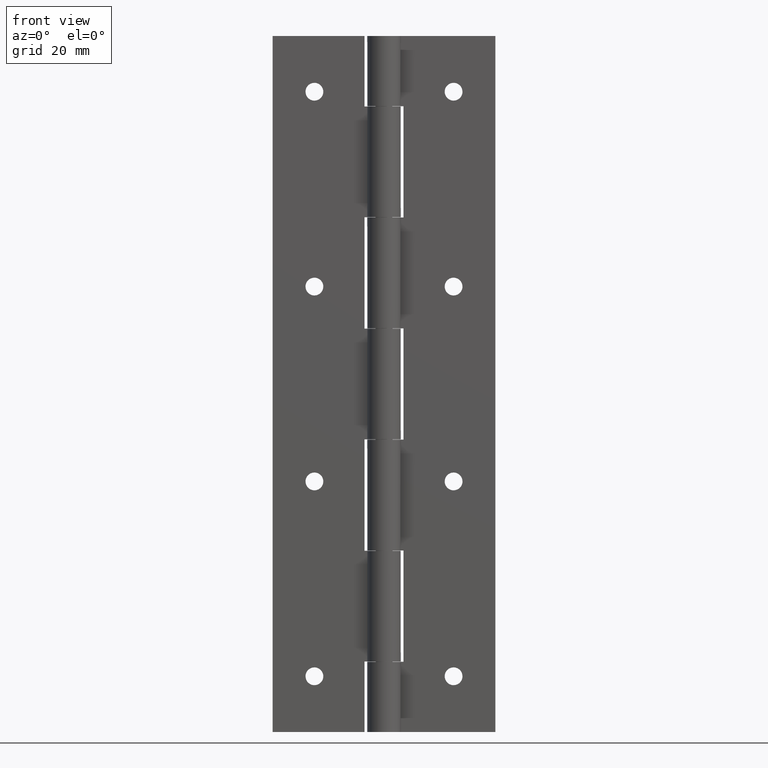
[diagram: clean part render]
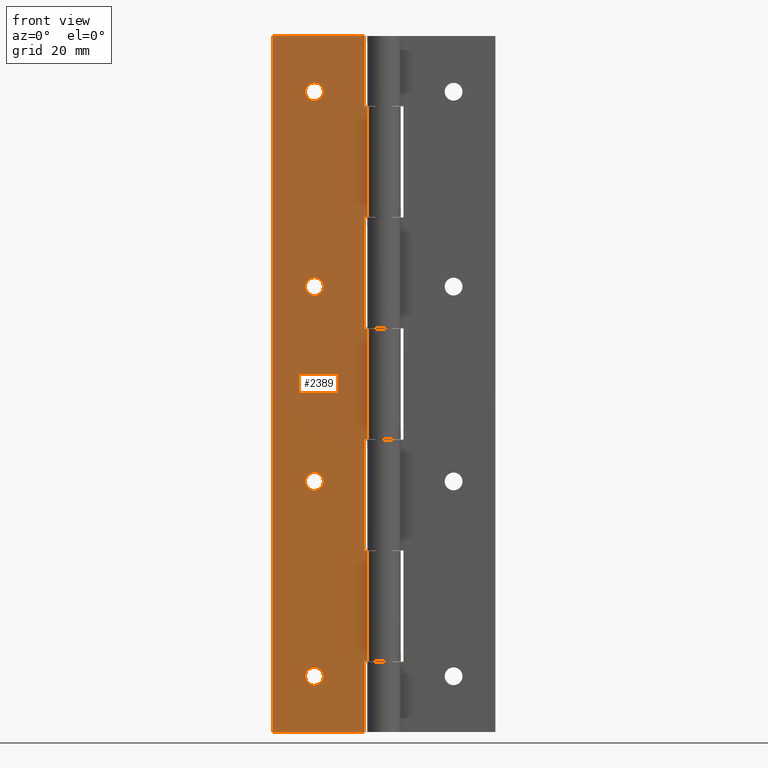
[diagram: same view with one face highlighted and labeled with its STEP entity id]
A machine part, front view. The second image highlights one B-rep face of the part: STEP entity #2389.
In plain terms, the highlighted face is a freeform B-spline surface patch.
Its self-contained STEP definition (entity closure, byte-faithful):
#1013=CARTESIAN_POINT('',(-12.500000000000000,0.800000000000023,116.599999999999990));
#1014=VERTEX_POINT('',#1013);
#1015=CARTESIAN_POINT('',(-14.095067733891041,0.800000000000023,115.125534554206000));
#1016=VERTEX_POINT('',#1015);
#1017=CARTESIAN_POINT('',(-12.500000000000000,0.800000000000023,116.599999999999990));
#1018=CARTESIAN_POINT('',(-13.979024784715719,0.800000000000023,116.600000000000020));
#1019=CARTESIAN_POINT('',(-14.095067733891037,0.800000000000023,115.125534554206030));
#1027=(BOUNDED_CURVE()B_SPLINE_CURVE(2,(#1017,#1018,#1019),.UNSPECIFIED.,.F.,.U.)B_SPLINE_CURVE_WITH_KNOTS((3,3),(0.0,0.236331300408905),.UNSPECIFIED.)CURVE()GEOMETRIC_REPRESENTATION_ITEM()RATIONAL_B_SPLINE_CURVE((1.0,0.723120658867467,0.969723355704633))REPRESENTATION_ITEM(''));
#1028=EDGE_CURVE('',#1014,#1016,#1027,.T.);
#1069=CARTESIAN_POINT('',(-10.904932266108959,0.800000000000023,114.874465445794000));
#1070=VERTEX_POINT('',#1069);
#1076=CARTESIAN_POINT('',(-10.904932266108968,0.800000000000023,114.874465445793990));
#1077=CARTESIAN_POINT('',(-10.899999999999997,0.800000000000023,114.937135827741410));
#1078=CARTESIAN_POINT('',(-10.900000000000000,0.800000000000023,115.0));
#1079=CARTESIAN_POINT('',(-10.900000000000000,0.800000000000023,116.600000000000010));
#1080=CARTESIAN_POINT('',(-12.500000000000000,0.800000000000023,116.599999999999990));
#1088=(BOUNDED_CURVE()B_SPLINE_CURVE(2,(#1076,#1077,#1078,#1079,#1080),.UNSPECIFIED.,.F.,.U.)B_SPLINE_CURVE_WITH_KNOTS((3,2,3),(0.736331300408906,0.750000000000000,1.0),.UNSPECIFIED.)CURVE()GEOMETRIC_REPRESENTATION_ITEM()RATIONAL_B_SPLINE_CURVE((0.969723355704634,0.983986122319081,1.0,0.707106781186548,1.0))REPRESENTATION_ITEM(''));
#1089=EDGE_CURVE('',#1070,#1014,#1088,.T.);
#1112=CARTESIAN_POINT('',(-12.500000000000000,0.800000000000023,113.400000000000010));
#1113=VERTEX_POINT('',#1112);
#1114=CARTESIAN_POINT('',(-14.095067733891034,0.800000000000023,115.125534554206000));
#1115=CARTESIAN_POINT('',(-14.100000000000001,0.800000000000023,115.062864172258570));
#1116=CARTESIAN_POINT('',(-14.100000000000000,0.800000000000023,115.0));
#1117=CARTESIAN_POINT('',(-14.100000000000001,0.800000000000023,113.400000000000010));
#1118=CARTESIAN_POINT('',(-12.500000000000000,0.800000000000023,113.400000000000010));
#1126=(BOUNDED_CURVE()B_SPLINE_CURVE(2,(#1114,#1115,#1116,#1117,#1118),.UNSPECIFIED.,.F.,.U.)B_SPLINE_CURVE_WITH_KNOTS((3,2,3),(0.236331300408905,0.250000000000000,0.500000000000000),.UNSPECIFIED.)CURVE()GEOMETRIC_REPRESENTATION_ITEM()RATIONAL_B_SPLINE_CURVE((0.969723355704634,0.983986122319081,1.0,0.707106781186548,1.0))REPRESENTATION_ITEM(''));
#1127=EDGE_CURVE('',#1016,#1113,#1126,.T.);
#1129=CARTESIAN_POINT('',(-12.500000000000000,0.800000000000023,113.400000000000010));
#1130=CARTESIAN_POINT('',(-11.020975215284286,0.800000000000023,113.400000000000010));
#1131=CARTESIAN_POINT('',(-10.904932266108959,0.800000000000023,114.874465445794020));
#1139=(BOUNDED_CURVE()B_SPLINE_CURVE(2,(#1129,#1130,#1131),.UNSPECIFIED.,.F.,.U.)B_SPLINE_CURVE_WITH_KNOTS((3,3),(0.500000000000000,0.736331300408905),.UNSPECIFIED.)CURVE()GEOMETRIC_REPRESENTATION_ITEM()RATIONAL_B_SPLINE_CURVE((1.0,0.723120658867467,0.969723355704633))REPRESENTATION_ITEM(''));
#1140=EDGE_CURVE('',#1113,#1070,#1139,.T.);
#1195=CARTESIAN_POINT('',(-12.500000000000000,0.800000000000023,81.600000000000009));
#1196=VERTEX_POINT('',#1195);
#1197=CARTESIAN_POINT('',(-14.095067733891041,0.800000000000023,80.125534554206041));
#1198=VERTEX_POINT('',#1197);
#1199=CARTESIAN_POINT('',(-12.500000000000000,0.800000000000023,81.600000000000009));
#1200=CARTESIAN_POINT('',(-13.979024784715726,0.800000000000023,81.600000000000009));
#1201=CARTESIAN_POINT('',(-14.095067733891041,0.800000000000023,80.125534554206041));
#1209=(BOUNDED_CURVE()B_SPLINE_CURVE(2,(#1199,#1200,#1201),.UNSPECIFIED.,.F.,.U.)B_SPLINE_CURVE_WITH_KNOTS((3,3),(0.0,0.236331300408907),.UNSPECIFIED.)CURVE()GEOMETRIC_REPRESENTATION_ITEM()RATIONAL_B_SPLINE_CURVE((1.0,0.723120658867465,0.969723355704637))REPRESENTATION_ITEM(''));
#1210=EDGE_CURVE('',#1196,#1198,#1209,.T.);
#1251=CARTESIAN_POINT('',(-10.904932266108959,0.800000000000023,79.874465445793959));
#1252=VERTEX_POINT('',#1251);
#1258=CARTESIAN_POINT('',(-10.904932266108965,0.800000000000023,79.874465445793959));
#1259=CARTESIAN_POINT('',(-10.900000000000004,0.800000000000023,79.937135827741400));
#1260=CARTESIAN_POINT('',(-10.900000000000000,0.800000000000023,80.0));
#1261=CARTESIAN_POINT('',(-10.900000000000000,0.800000000000023,81.600000000000009));
#1262=CARTESIAN_POINT('',(-12.500000000000000,0.800000000000023,81.600000000000009));
#1270=(BOUNDED_CURVE()B_SPLINE_CURVE(2,(#1258,#1259,#1260,#1261,#1262),.UNSPECIFIED.,.F.,.U.)B_SPLINE_CURVE_WITH_KNOTS((3,2,3),(0.736331300408906,0.750000000000000,1.0),.UNSPECIFIED.)CURVE()GEOMETRIC_REPRESENTATION_ITEM()RATIONAL_B_SPLINE_CURVE((0.969723355704635,0.983986122319081,1.0,0.707106781186548,1.0))REPRESENTATION_ITEM(''));
#1271=EDGE_CURVE('',#1252,#1196,#1270,.T.);
#1294=CARTESIAN_POINT('',(-12.500000000000000,0.800000000000023,78.399999999999991));
#1295=VERTEX_POINT('',#1294);
#1296=CARTESIAN_POINT('',(-14.095067733891039,0.800000000000023,80.125534554206041));
#1297=CARTESIAN_POINT('',(-14.100000000000007,0.800000000000023,80.062864172258585));
#1298=CARTESIAN_POINT('',(-14.100000000000000,0.800000000000023,80.0));
#1299=CARTESIAN_POINT('',(-14.100000000000001,0.800000000000023,78.399999999999991));
#1300=CARTESIAN_POINT('',(-12.500000000000000,0.800000000000023,78.399999999999991));
#1308=(BOUNDED_CURVE()B_SPLINE_CURVE(2,(#1296,#1297,#1298,#1299,#1300),.UNSPECIFIED.,.F.,.U.)B_SPLINE_CURVE_WITH_KNOTS((3,2,3),(0.236331300408907,0.250000000000000,0.500000000000000),.UNSPECIFIED.)CURVE()GEOMETRIC_REPRESENTATION_ITEM()RATIONAL_B_SPLINE_CURVE((0.969723355704637,0.983986122319083,1.0,0.707106781186548,1.0))REPRESENTATION_ITEM(''));
#1309=EDGE_CURVE('',#1198,#1295,#1308,.T.);
#1311=CARTESIAN_POINT('',(-12.500000000000000,0.800000000000023,78.399999999999991));
#1312=CARTESIAN_POINT('',(-11.020975215284286,0.800000000000023,78.399999999999991));
#1313=CARTESIAN_POINT('',(-10.904932266108959,0.800000000000023,79.874465445793959));
#1321=(BOUNDED_CURVE()B_SPLINE_CURVE(2,(#1311,#1312,#1313),.UNSPECIFIED.,.F.,.U.)B_SPLINE_CURVE_WITH_KNOTS((3,3),(0.500000000000000,0.736331300408905),.UNSPECIFIED.)CURVE()GEOMETRIC_REPRESENTATION_ITEM()RATIONAL_B_SPLINE_CURVE((1.0,0.723120658867467,0.969723355704633))REPRESENTATION_ITEM(''));
#1322=EDGE_CURVE('',#1295,#1252,#1321,.T.);
#1377=CARTESIAN_POINT('',(-12.500000000000000,0.800000000000023,46.599999999999987));
#1378=VERTEX_POINT('',#1377);
#1379=CARTESIAN_POINT('',(-14.095067733891041,0.800000000000023,45.125534554206048));
#1380=VERTEX_POINT('',#1379);
#1381=CARTESIAN_POINT('',(-12.500000000000000,0.800000000000023,46.599999999999987));
#1382=CARTESIAN_POINT('',(-13.979024784715719,0.800000000000023,46.600000000000001));
#1383=CARTESIAN_POINT('',(-14.095067733891037,0.800000000000023,45.125534554206048));
#1391=(BOUNDED_CURVE()B_SPLINE_CURVE(2,(#1381,#1382,#1383),.UNSPECIFIED.,.F.,.U.)B_SPLINE_CURVE_WITH_KNOTS((3,3),(0.0,0.236331300408905),.UNSPECIFIED.)CURVE()GEOMETRIC_REPRESENTATION_ITEM()RATIONAL_B_SPLINE_CURVE((1.0,0.723120658867467,0.969723355704633))REPRESENTATION_ITEM(''));
#1392=EDGE_CURVE('',#1378,#1380,#1391,.T.);
#1433=CARTESIAN_POINT('',(-10.904932266108959,0.800000000000023,44.874465445793959));
#1434=VERTEX_POINT('',#1433);
#1440=CARTESIAN_POINT('',(-10.904932266108963,0.800000000000023,44.874465445793966));
#1441=CARTESIAN_POINT('',(-10.900000000000004,0.800000000000023,44.937135827741407));
#1442=CARTESIAN_POINT('',(-10.900000000000000,0.800000000000023,45.0));
#1443=CARTESIAN_POINT('',(-10.900000000000000,0.800000000000023,46.599999999999987));
#1444=CARTESIAN_POINT('',(-12.500000000000000,0.800000000000023,46.599999999999987));
#1452=(BOUNDED_CURVE()B_SPLINE_CURVE(2,(#1440,#1441,#1442,#1443,#1444),.UNSPECIFIED.,.F.,.U.)B_SPLINE_CURVE_WITH_KNOTS((3,2,3),(0.736331300408906,0.750000000000000,1.0),.UNSPECIFIED.)CURVE()GEOMETRIC_REPRESENTATION_ITEM()RATIONAL_B_SPLINE_CURVE((0.969723355704635,0.983986122319081,1.0,0.707106781186548,1.0))REPRESENTATION_ITEM(''));
#1453=EDGE_CURVE('',#1434,#1378,#1452,.T.);
#1476=CARTESIAN_POINT('',(-12.500000000000000,0.800000000000023,43.399999999999999));
#1477=VERTEX_POINT('',#1476);
#1478=CARTESIAN_POINT('',(-14.095067733891034,0.800000000000023,45.125534554206048));
#1479=CARTESIAN_POINT('',(-14.100000000000001,0.800000000000023,45.062864172258600));
#1480=CARTESIAN_POINT('',(-14.100000000000000,0.800000000000023,45.0));
#1481=CARTESIAN_POINT('',(-14.100000000000001,0.800000000000023,43.399999999999991));
#1482=CARTESIAN_POINT('',(-12.500000000000000,0.800000000000023,43.399999999999999));
#1490=(BOUNDED_CURVE()B_SPLINE_CURVE(2,(#1478,#1479,#1480,#1481,#1482),.UNSPECIFIED.,.F.,.U.)B_SPLINE_CURVE_WITH_KNOTS((3,2,3),(0.236331300408905,0.250000000000000,0.500000000000000),.UNSPECIFIED.)CURVE()GEOMETRIC_REPRESENTATION_ITEM()RATIONAL_B_SPLINE_CURVE((0.969723355704634,0.983986122319081,1.0,0.707106781186548,1.0))REPRESENTATION_ITEM(''));
#1491=EDGE_CURVE('',#1380,#1477,#1490,.T.);
#1493=CARTESIAN_POINT('',(-12.500000000000000,0.800000000000023,43.399999999999999));
#1494=CARTESIAN_POINT('',(-11.020975215284286,0.800000000000023,43.399999999999999));
#1495=CARTESIAN_POINT('',(-10.904932266108959,0.800000000000023,44.874465445793966));
#1503=(BOUNDED_CURVE()B_SPLINE_CURVE(2,(#1493,#1494,#1495),.UNSPECIFIED.,.F.,.U.)B_SPLINE_CURVE_WITH_KNOTS((3,3),(0.500000000000000,0.736331300408905),.UNSPECIFIED.)CURVE()GEOMETRIC_REPRESENTATION_ITEM()RATIONAL_B_SPLINE_CURVE((1.0,0.723120658867467,0.969723355704633))REPRESENTATION_ITEM(''));
#1504=EDGE_CURVE('',#1477,#1434,#1503,.T.);
#1559=CARTESIAN_POINT('',(-12.500000000000000,0.800000000000023,11.600000000000000));
#1560=VERTEX_POINT('',#1559);
#1561=CARTESIAN_POINT('',(-14.095067733891041,0.800000000000023,10.125534554206039));
#1562=VERTEX_POINT('',#1561);
#1563=CARTESIAN_POINT('',(-12.500000000000000,0.800000000000023,11.600000000000000));
#1564=CARTESIAN_POINT('',(-13.979024784715728,0.800000000000023,11.600000000000001));
#1565=CARTESIAN_POINT('',(-14.095067733891037,0.800000000000023,10.125534554206038));
#1573=(BOUNDED_CURVE()B_SPLINE_CURVE(2,(#1563,#1564,#1565),.UNSPECIFIED.,.F.,.U.)B_SPLINE_CURVE_WITH_KNOTS((3,3),(0.0,0.236331300408906),.UNSPECIFIED.)CURVE()GEOMETRIC_REPRESENTATION_ITEM()RATIONAL_B_SPLINE_CURVE((1.0,0.723120658867466,0.969723355704636))REPRESENTATION_ITEM(''));
#1574=EDGE_CURVE('',#1560,#1562,#1573,.T.);
#1615=CARTESIAN_POINT('',(-10.904932266108959,0.800000000000023,9.874465445793961));
#1616=VERTEX_POINT('',#1615);
#1622=CARTESIAN_POINT('',(-10.904932266108966,0.800000000000023,9.874465445793961));
#1623=CARTESIAN_POINT('',(-10.899999999999999,0.800000000000023,9.937135827741408));
#1624=CARTESIAN_POINT('',(-10.900000000000000,0.800000000000023,10.0));
#1625=CARTESIAN_POINT('',(-10.900000000000000,0.800000000000023,11.600000000000001));
#1626=CARTESIAN_POINT('',(-12.500000000000000,0.800000000000023,11.600000000000000));
#1634=(BOUNDED_CURVE()B_SPLINE_CURVE(2,(#1622,#1623,#1624,#1625,#1626),.UNSPECIFIED.,.F.,.U.)B_SPLINE_CURVE_WITH_KNOTS((3,2,3),(0.736331300408906,0.750000000000000,1.0),.UNSPECIFIED.)CURVE()GEOMETRIC_REPRESENTATION_ITEM()RATIONAL_B_SPLINE_CURVE((0.969723355704635,0.983986122319082,1.0,0.707106781186548,1.0))REPRESENTATION_ITEM(''));
#1635=EDGE_CURVE('',#1616,#1560,#1634,.T.);
#1658=CARTESIAN_POINT('',(-12.500000000000000,0.800000000000023,8.400000000000000));
#1659=VERTEX_POINT('',#1658);
#1660=CARTESIAN_POINT('',(-14.095067733891044,0.800000000000023,10.125534554206038));
#1661=CARTESIAN_POINT('',(-14.100000000000003,0.800000000000023,10.062864172258591));
#1662=CARTESIAN_POINT('',(-14.100000000000000,0.800000000000023,10.0));
#1663=CARTESIAN_POINT('',(-14.100000000000001,0.800000000000023,8.400000000000000));
#1664=CARTESIAN_POINT('',(-12.500000000000000,0.800000000000023,8.400000000000000));
#1672=(BOUNDED_CURVE()B_SPLINE_CURVE(2,(#1660,#1661,#1662,#1663,#1664),.UNSPECIFIED.,.F.,.U.)B_SPLINE_CURVE_WITH_KNOTS((3,2,3),(0.236331300408906,0.250000000000000,0.500000000000000),.UNSPECIFIED.)CURVE()GEOMETRIC_REPRESENTATION_ITEM()RATIONAL_B_SPLINE_CURVE((0.969723355704636,0.983986122319082,1.0,0.707106781186548,1.0))REPRESENTATION_ITEM(''));
#1673=EDGE_CURVE('',#1562,#1659,#1672,.T.);
#1675=CARTESIAN_POINT('',(-12.500000000000000,0.800000000000023,8.400000000000000));
#1676=CARTESIAN_POINT('',(-11.020975215284267,0.800000000000023,8.400000000000000));
#1677=CARTESIAN_POINT('',(-10.904932266108961,0.800000000000023,9.874465445793961));
#1685=(BOUNDED_CURVE()B_SPLINE_CURVE(2,(#1675,#1676,#1677),.UNSPECIFIED.,.F.,.U.)B_SPLINE_CURVE_WITH_KNOTS((3,3),(0.500000000000000,0.736331300408907),.UNSPECIFIED.)CURVE()GEOMETRIC_REPRESENTATION_ITEM()RATIONAL_B_SPLINE_CURVE((1.0,0.723120658867465,0.969723355704638))REPRESENTATION_ITEM(''));
#1686=EDGE_CURVE('',#1659,#1616,#1685,.T.);
#1728=CARTESIAN_POINT('',(-3.500000000000100,0.800000000000023,32.549999999999997));
#1729=VERTEX_POINT('',#1728);
#1744=CARTESIAN_POINT('',(-3.500000000000100,0.799999999999990,52.549999999999997));
#1745=VERTEX_POINT('',#1744);
#1751=CARTESIAN_POINT('',(-3.500000000000100,0.800000000000023,32.549999999999997));
#1752=CARTESIAN_POINT('',(-3.500000000000100,0.799999999999990,52.549999999999997));
#1753=QUASI_UNIFORM_CURVE('',1,(#1751,#1752),.UNSPECIFIED.,.F.,.U.);
#1754=EDGE_CURVE('',#1729,#1745,#1753,.T.);
#1772=CARTESIAN_POINT('',(-2.891366458960195,0.799999999999990,32.549999999999997));
#1773=VERTEX_POINT('',#1772);
#1774=CARTESIAN_POINT('',(-2.891366458960195,0.799999999999990,32.549999999999997));
#1775=CARTESIAN_POINT('',(-3.500000000000100,0.800000000000023,32.549999999999997));
#1776=QUASI_UNIFORM_CURVE('',1,(#1774,#1775),.UNSPECIFIED.,.F.,.U.);
#1777=EDGE_CURVE('',#1773,#1729,#1776,.T.);
#1812=CARTESIAN_POINT('',(-2.891366458960195,0.799999999999990,52.549999999999997));
#1813=VERTEX_POINT('',#1812);
#1835=CARTESIAN_POINT('',(-3.500000000000100,0.799999999999990,52.549999999999997));
#1836=CARTESIAN_POINT('',(-2.891366458960195,0.799999999999990,52.549999999999997));
#1837=QUASI_UNIFORM_CURVE('',1,(#1835,#1836),.UNSPECIFIED.,.F.,.U.);
#1838=EDGE_CURVE('',#1745,#1813,#1837,.T.);
#1860=CARTESIAN_POINT('',(-3.500000000000100,0.800000000000023,72.450000000000003));
#1861=VERTEX_POINT('',#1860);
#1876=CARTESIAN_POINT('',(-3.500000000000100,0.799999999999990,92.450000000000003));
#1877=VERTEX_POINT('',#1876);
#1883=CARTESIAN_POINT('',(-3.500000000000100,0.800000000000023,72.450000000000003));
#1884=CARTESIAN_POINT('',(-3.500000000000100,0.799999999999990,92.450000000000003));
#1885=QUASI_UNIFORM_CURVE('',1,(#1883,#1884),.UNSPECIFIED.,.F.,.U.);
#1886=EDGE_CURVE('',#1861,#1877,#1885,.T.);
#1896=CARTESIAN_POINT('',(-2.891366458960195,0.799999999999990,92.450000000000003));
#1897=VERTEX_POINT('',#1896);
#1919=CARTESIAN_POINT('',(-3.500000000000100,0.799999999999990,92.450000000000003));
#1920=CARTESIAN_POINT('',(-2.891366458960195,0.799999999999990,92.450000000000003));
#1921=QUASI_UNIFORM_CURVE('',1,(#1919,#1920),.UNSPECIFIED.,.F.,.U.);
#1922=EDGE_CURVE('',#1877,#1897,#1921,.T.);
#1952=CARTESIAN_POINT('',(-2.891366458960195,0.799999999999990,72.450000000000003));
#1953=VERTEX_POINT('',#1952);
#1954=CARTESIAN_POINT('',(-2.891366458960195,0.799999999999990,72.450000000000003));
#1955=CARTESIAN_POINT('',(-3.500000000000100,0.800000000000023,72.450000000000003));
#1956=QUASI_UNIFORM_CURVE('',1,(#1954,#1955),.UNSPECIFIED.,.F.,.U.);
#1957=EDGE_CURVE('',#1953,#1861,#1956,.T.);
#1992=CARTESIAN_POINT('',(-2.891366458960195,0.799999999999990,12.650000000000000));
#1993=VERTEX_POINT('',#1992);
#2015=CARTESIAN_POINT('',(-3.500000000000100,0.800000000000023,12.650000000000000));
#2016=VERTEX_POINT('',#2015);
#2017=CARTESIAN_POINT('',(-3.500000000000100,0.800000000000023,12.650000000000000));
#2018=CARTESIAN_POINT('',(-2.891366458960195,0.799999999999990,12.650000000000000));
#2019=QUASI_UNIFORM_CURVE('',1,(#2017,#2018),.UNSPECIFIED.,.F.,.U.);
#2020=EDGE_CURVE('',#2016,#1993,#2019,.T.);
#2048=CARTESIAN_POINT('',(-3.500000000000100,0.799999999999990,0.0));
#2049=VERTEX_POINT('',#2048);
#2063=CARTESIAN_POINT('',(-3.500000000000100,0.799999999999990,0.0));
#2064=CARTESIAN_POINT('',(-3.500000000000100,0.800000000000023,12.650000000000000));
#2065=QUASI_UNIFORM_CURVE('',1,(#2063,#2064),.UNSPECIFIED.,.F.,.U.);
#2066=EDGE_CURVE('',#2049,#2016,#2065,.T.);
#2085=CARTESIAN_POINT('',(-3.500000000000100,0.800000000000023,112.349999999999990));
#2086=VERTEX_POINT('',#2085);
#2092=CARTESIAN_POINT('',(-2.891366458960195,0.799999999999990,112.349999999999990));
#2093=VERTEX_POINT('',#2092);
#2094=CARTESIAN_POINT('',(-2.891366458960195,0.799999999999990,112.349999999999990));
#2095=CARTESIAN_POINT('',(-3.500000000000100,0.800000000000023,112.349999999999990));
#2096=QUASI_UNIFORM_CURVE('',1,(#2094,#2095),.UNSPECIFIED.,.F.,.U.);
#2097=EDGE_CURVE('',#2093,#2086,#2096,.T.);
#2140=CARTESIAN_POINT('',(-3.500000000000100,0.800000000000023,125.0));
#2141=VERTEX_POINT('',#2140);
#2147=CARTESIAN_POINT('',(-3.500000000000100,0.800000000000023,112.349999999999990));
#2148=CARTESIAN_POINT('',(-3.500000000000100,0.800000000000023,125.0));
#2149=QUASI_UNIFORM_CURVE('',1,(#2147,#2148),.UNSPECIFIED.,.F.,.U.);
#2150=EDGE_CURVE('',#2086,#2141,#2149,.T.);
#2160=CARTESIAN_POINT('',(-20.0,0.799999999999990,0.0));
#2161=VERTEX_POINT('',#2160);
#2169=CARTESIAN_POINT('',(-20.0,0.799999999999990,125.0));
#2170=VERTEX_POINT('',#2169);
#2171=CARTESIAN_POINT('',(-20.0,0.799999999999990,125.0));
#2172=CARTESIAN_POINT('',(-20.0,0.799999999999990,0.0));
#2173=QUASI_UNIFORM_CURVE('',1,(#2171,#2172),.UNSPECIFIED.,.F.,.U.);
#2174=EDGE_CURVE('',#2170,#2161,#2173,.T.);
#2203=CARTESIAN_POINT('',(-3.500000000000100,0.800000000000023,125.0));
#2204=CARTESIAN_POINT('',(-20.0,0.799999999999990,125.0));
#2205=QUASI_UNIFORM_CURVE('',1,(#2203,#2204),.UNSPECIFIED.,.F.,.U.);
#2206=EDGE_CURVE('',#2141,#2170,#2205,.T.);
#2222=CARTESIAN_POINT('',(-3.500000000000100,0.799999999999990,0.0));
#2223=CARTESIAN_POINT('',(-20.0,0.799999999999990,0.0));
#2224=QUASI_UNIFORM_CURVE('',1,(#2222,#2223),.UNSPECIFIED.,.F.,.U.);
#2225=EDGE_CURVE('',#2049,#2161,#2224,.T.);
#2260=CARTESIAN_POINT('',(-2.891366458960195,0.799999999999990,112.349999999999990));
#2261=CARTESIAN_POINT('',(-2.891366458960195,0.799999999999990,92.450000000000003));
#2262=QUASI_UNIFORM_CURVE('',1,(#2260,#2261),.UNSPECIFIED.,.F.,.U.);
#2263=EDGE_CURVE('',#2093,#1897,#2262,.T.);
#2291=CARTESIAN_POINT('',(-2.891366458960195,0.799999999999990,32.549999999999997));
#2292=CARTESIAN_POINT('',(-2.891366458960195,0.799999999999990,12.650000000000000));
#2293=QUASI_UNIFORM_CURVE('',1,(#2291,#2292),.UNSPECIFIED.,.F.,.U.);
#2294=EDGE_CURVE('',#1773,#1993,#2293,.T.);
#2334=CARTESIAN_POINT('',(-2.891366458960195,0.799999999999990,72.450000000000003));
#2335=CARTESIAN_POINT('',(-2.891366458960195,0.799999999999990,52.549999999999997));
#2336=QUASI_UNIFORM_CURVE('',1,(#2334,#2335),.UNSPECIFIED.,.F.,.U.);
#2337=EDGE_CURVE('',#1953,#1813,#2336,.T.);
#2342=CARTESIAN_POINT('',(-20.854576212215090,0.799999999999990,131.243749757725710));
#2343=CARTESIAN_POINT('',(-20.854576212215090,0.799999999999990,-6.243753110487013));
#2344=CARTESIAN_POINT('',(-2.036789787855797,0.799999999999990,131.243749757725710));
#2345=CARTESIAN_POINT('',(-2.036789787855797,0.799999999999990,-6.243753110487013));
#2346=B_SPLINE_SURFACE_WITH_KNOTS('',1,1,((#2342,#2344),(#2343,#2345)),.UNSPECIFIED.,.F.,.F.,.U.,(2,2),(2,2),(0.0,137.487502868212690),(0.0,18.817786424359291),.UNSPECIFIED.);
#2347=ORIENTED_EDGE('',*,*,#1754,.T.);
#2348=ORIENTED_EDGE('',*,*,#1838,.T.);
#2349=ORIENTED_EDGE('',*,*,#2337,.F.);
#2350=ORIENTED_EDGE('',*,*,#1957,.T.);
#2351=ORIENTED_EDGE('',*,*,#1886,.T.);
#2352=ORIENTED_EDGE('',*,*,#1922,.T.);
#2353=ORIENTED_EDGE('',*,*,#2263,.F.);
#2354=ORIENTED_EDGE('',*,*,#2097,.T.);
#2355=ORIENTED_EDGE('',*,*,#2150,.T.);
#2356=ORIENTED_EDGE('',*,*,#2206,.T.);
#2357=ORIENTED_EDGE('',*,*,#2174,.T.);
#2358=ORIENTED_EDGE('',*,*,#2225,.F.);
#2359=ORIENTED_EDGE('',*,*,#2066,.T.);
#2360=ORIENTED_EDGE('',*,*,#2020,.T.);
#2361=ORIENTED_EDGE('',*,*,#2294,.F.);
#2362=ORIENTED_EDGE('',*,*,#1777,.T.);
#2363=EDGE_LOOP('',(#2347,#2348,#2349,#2350,#2351,#2352,#2353,#2354,#2355,#2356,#2357,#2358,#2359,#2360,#2361,#2362));
#2364=FACE_OUTER_BOUND('',#2363,.T.);
#2365=ORIENTED_EDGE('',*,*,#1686,.F.);
#2366=ORIENTED_EDGE('',*,*,#1673,.F.);
#2367=ORIENTED_EDGE('',*,*,#1574,.F.);
#2368=ORIENTED_EDGE('',*,*,#1635,.F.);
#2369=EDGE_LOOP('',(#2365,#2366,#2367,#2368));
#2370=FACE_BOUND('',#2369,.T.);
#2371=ORIENTED_EDGE('',*,*,#1504,.F.);
#2372=ORIENTED_EDGE('',*,*,#1491,.F.);
#2373=ORIENTED_EDGE('',*,*,#1392,.F.);
#2374=ORIENTED_EDGE('',*,*,#1453,.F.);
#2375=EDGE_LOOP('',(#2371,#2372,#2373,#2374));
#2376=FACE_BOUND('',#2375,.T.);
#2377=ORIENTED_EDGE('',*,*,#1322,.F.);
#2378=ORIENTED_EDGE('',*,*,#1309,.F.);
#2379=ORIENTED_EDGE('',*,*,#1210,.F.);
#2380=ORIENTED_EDGE('',*,*,#1271,.F.);
#2381=EDGE_LOOP('',(#2377,#2378,#2379,#2380));
#2382=FACE_BOUND('',#2381,.T.);
#2383=ORIENTED_EDGE('',*,*,#1140,.F.);
#2384=ORIENTED_EDGE('',*,*,#1127,.F.);
#2385=ORIENTED_EDGE('',*,*,#1028,.F.);
#2386=ORIENTED_EDGE('',*,*,#1089,.F.);
#2387=EDGE_LOOP('',(#2383,#2384,#2385,#2386));
#2388=FACE_BOUND('',#2387,.T.);
#2389=ADVANCED_FACE('',(#2364,#2370,#2376,#2382,#2388),#2346,.T.);